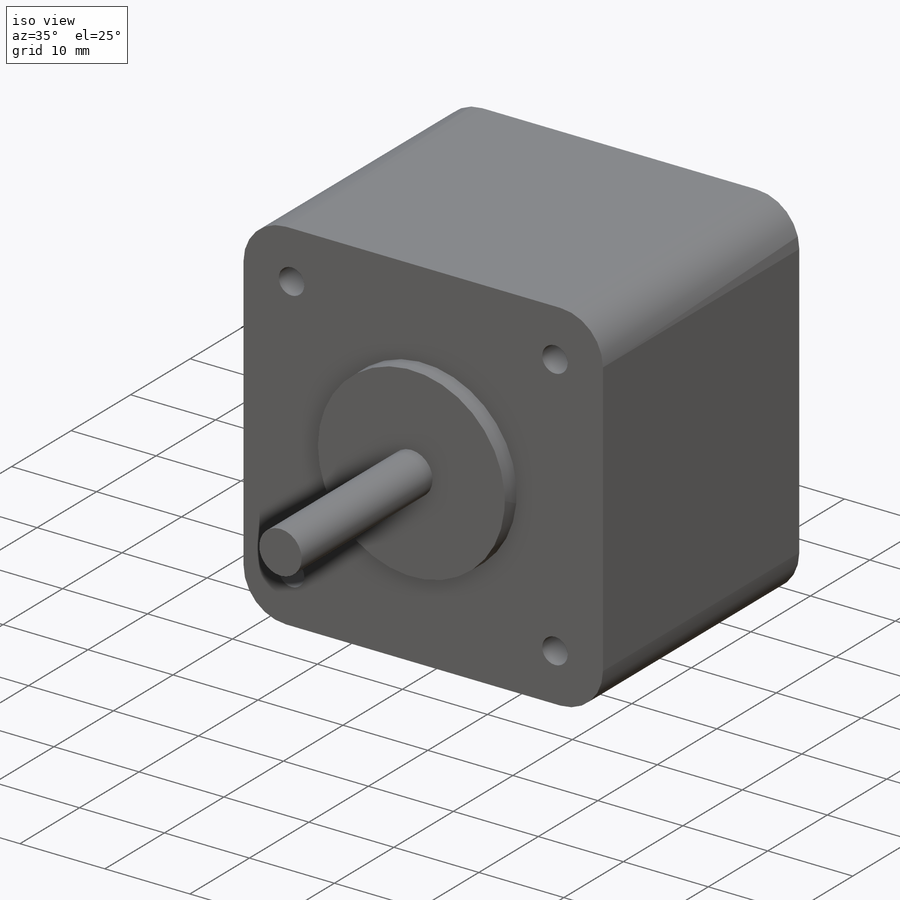
[diagram: iso view]
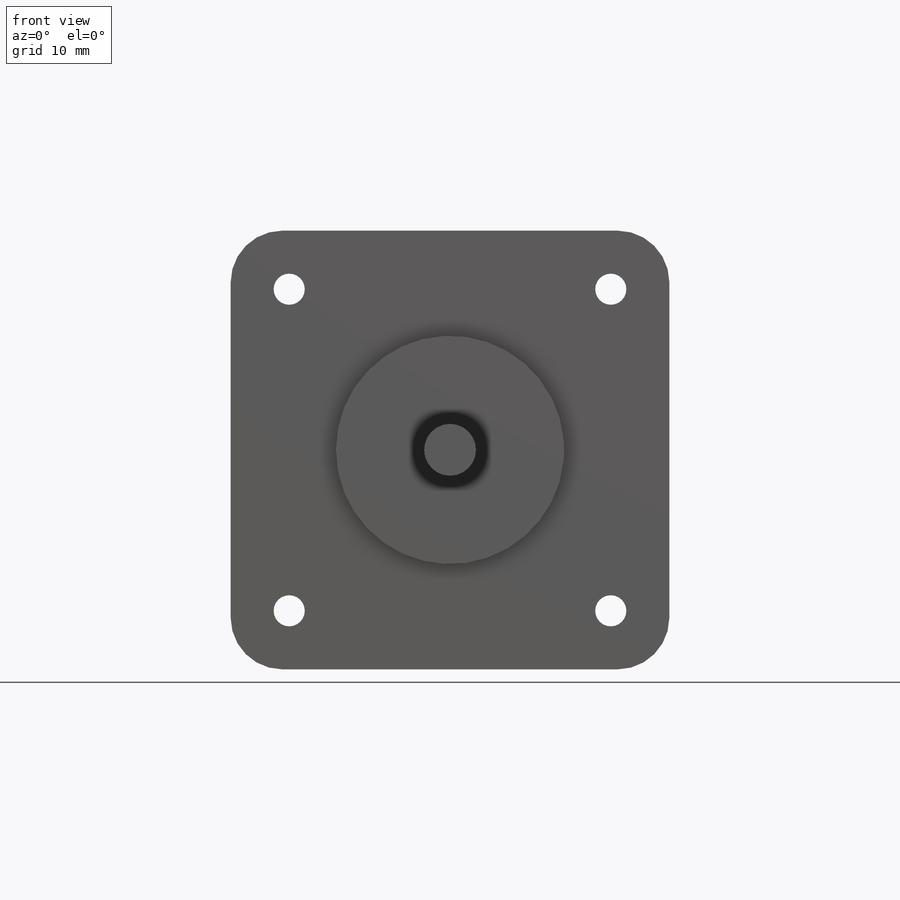
[diagram: front view]
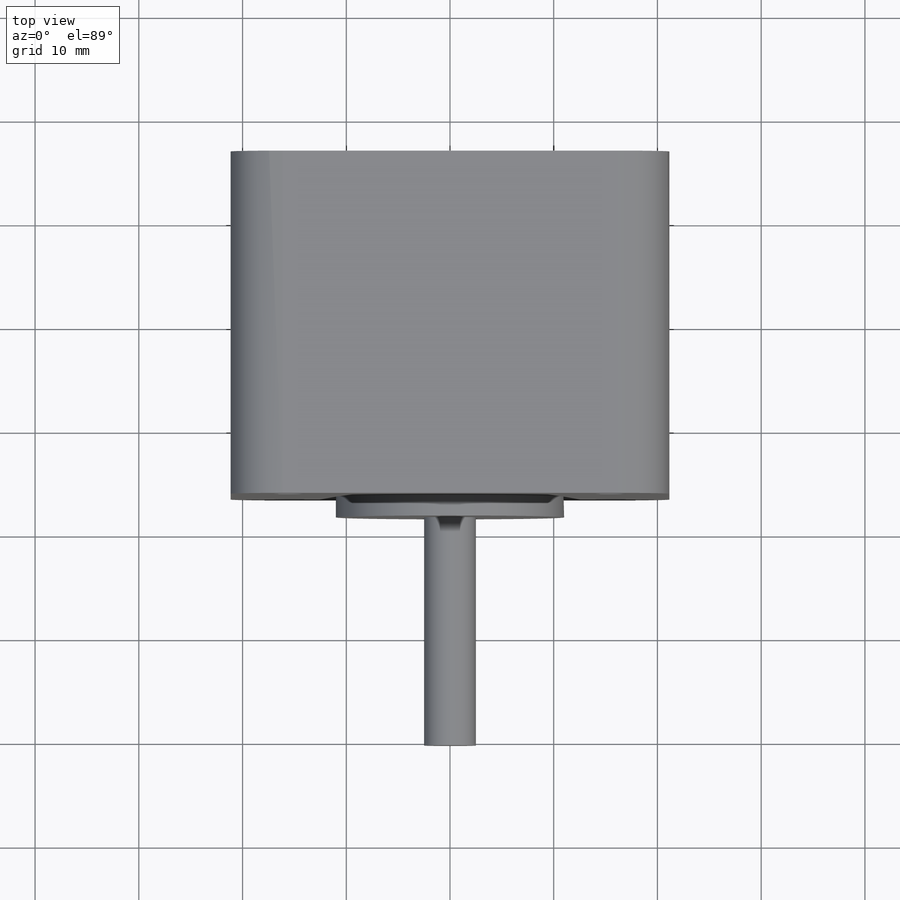
[diagram: top view]
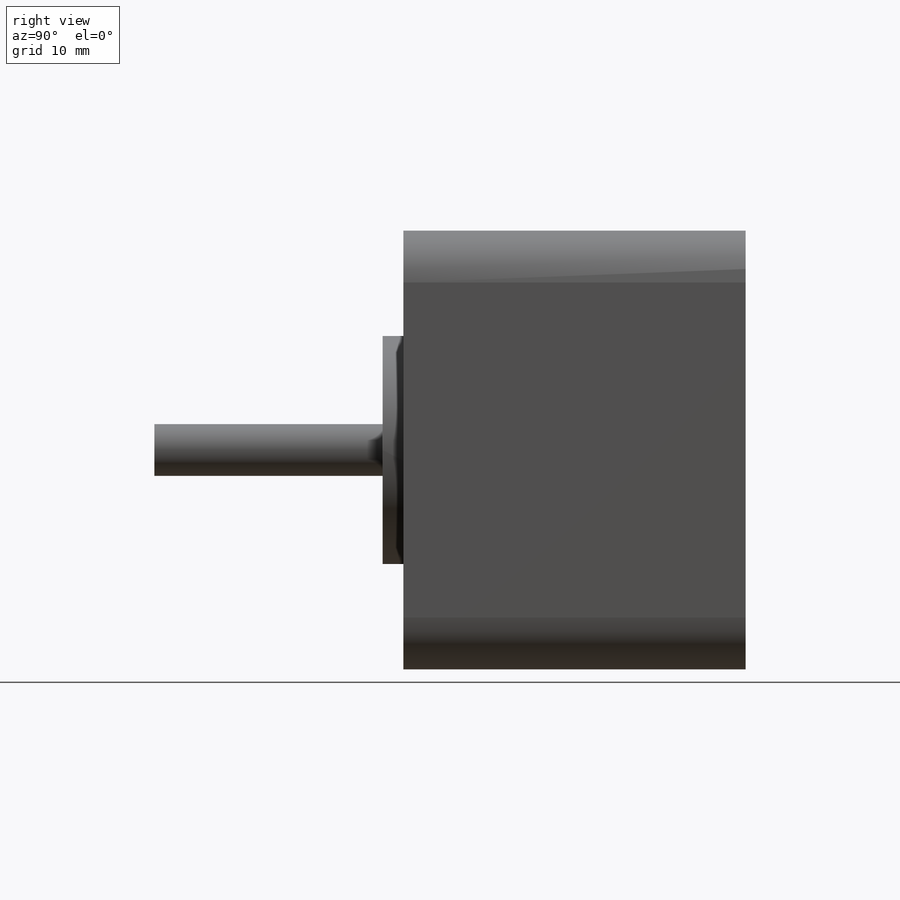
[diagram: right view]
SOLIDWORKS PART (.sldprt)
format: sldprt  version: not decoded by parser v0  size: 185,344 bytes
history: native  units: mm
features: sketch x4, extrude x3, material x1, cut_extrude x1 (+11 scaffold rows collapsed)
feature tree (20):
  scaffold x11  (default folders/planes/origin — collapsed)
  material  "Material <not specified>"
  sketch  "Sketch1"  dims[c1.D3=5.0mm c1.D6=5.0mm c1.D7=5.0mm c1.D8=5.0mm c1.D9=5.0mm c1.D1=42.3mm c1.D2=42.3mm c1.D4=47.14mm c1.D5=47.14mm c2.D6=0.07mm]
  extrude  "Boss-Extrude1"  Depth=33mm
  sketch  "Sketch5"  dims[D3=3.0mm D4=3.0mm D5=3.0mm D6=3.0mm D1=31.0mm D2=31.0mm]
  cut_extrude  "Cut-Extrude1"  [1 undecoded]
  sketch  "Sketch2"  dims[D1=5.0mm]
  extrude  "Boss-Extrude2"  Depth=24mm
  sketch  "Sketch3"  dims[D1=22.0mm]
  extrude  "Boss-Extrude3"  Depth=2mm
decode coverage: 7 of 8 modeling features carry decoded parameters
note: 1 parameter value undecoded
note: suppression state not decoded; provenance and decode notes live in map.json
